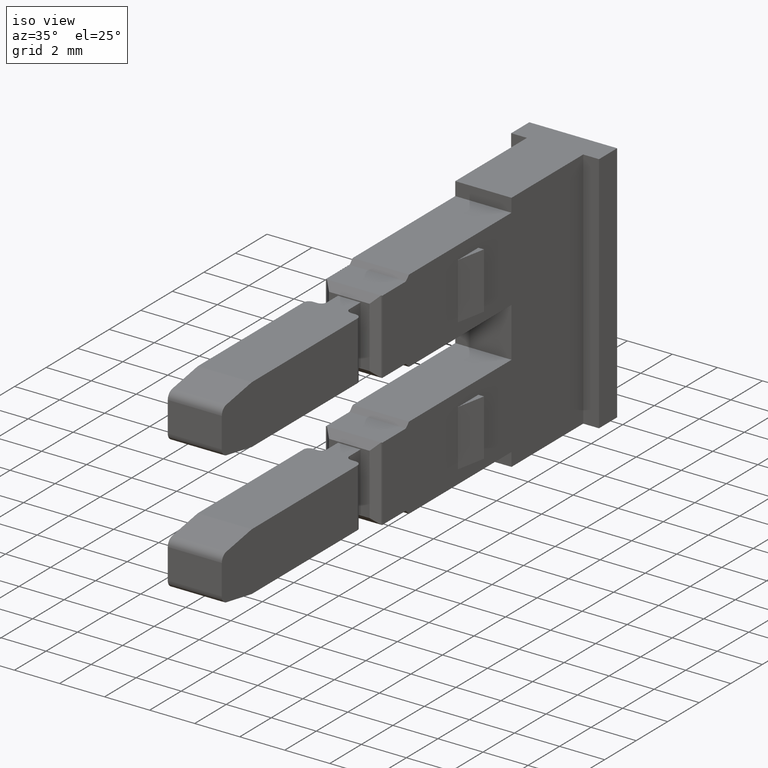
[diagram: clean part render]
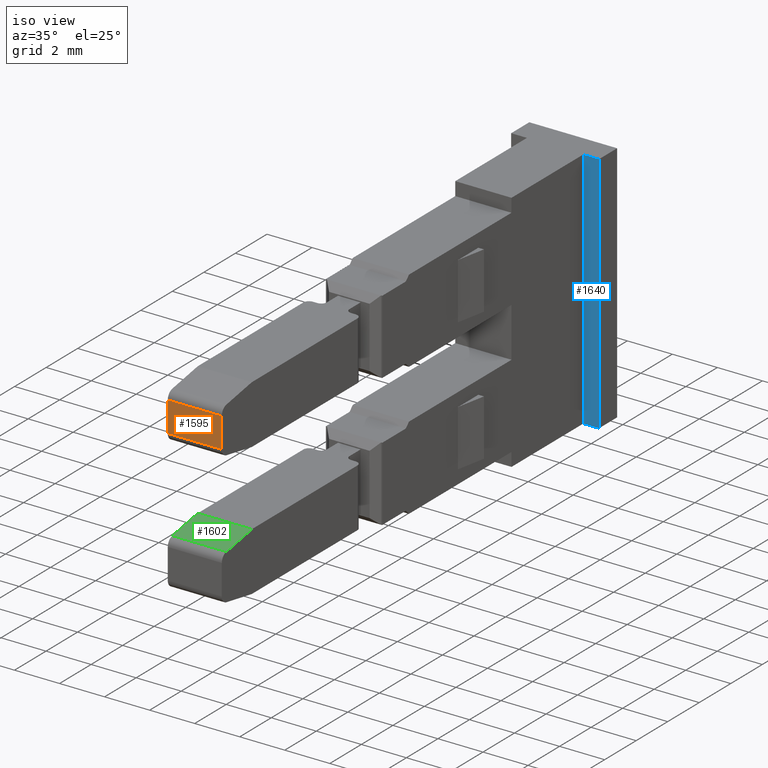
[diagram: same view with three faces highlighted in distinct colors, each labeled with its STEP entity id]
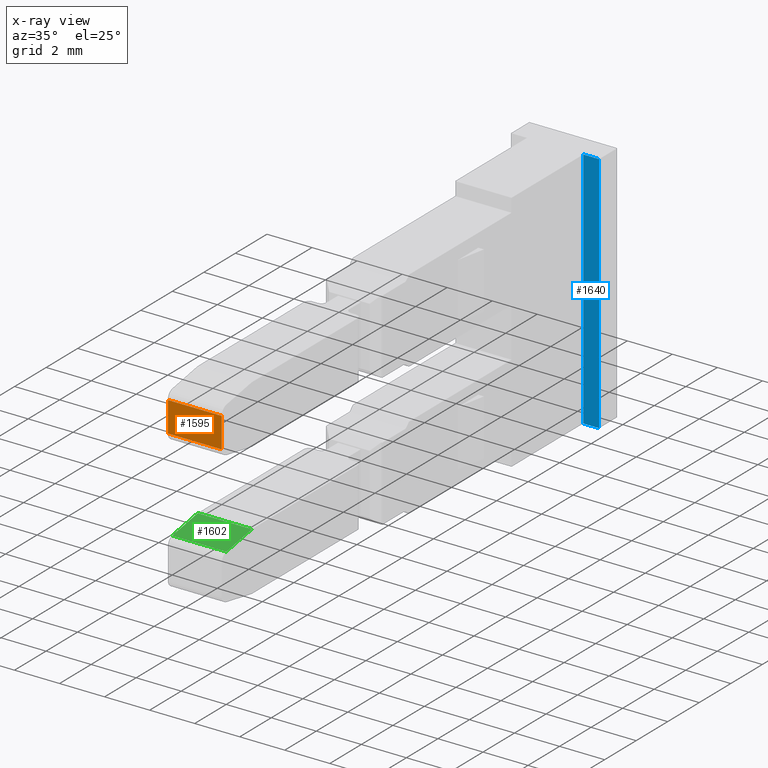
[diagram: x-ray of the same camera — body ghosted, the three highlighted faces saturated]
A machine part, iso view with three faces highlighted in distinct colors.
The next image is the same camera in x-ray (body ghosted, the three faces saturated) — at least one of them is partly hidden behind the body in this view.
Their STEP definitions:

[orange] entity #1595 — the highlighted planar face has unit normal (-0, 1, 0).
#218 = AXIS2_PLACEMENT_3D ( 'NONE', #2261, #2263, #2248 ) ;
#335 = VECTOR ( 'NONE', #2379, 1000.000000000000000 ) ;
#351 = VECTOR ( 'NONE', #2437, 1000.000000000000000 ) ;
#352 = VECTOR ( 'NONE', #2432, 1000.000000000000000 ) ;
#357 = VECTOR ( 'NONE', #2409, 1000.000000000000000 ) ;
#404 = VERTEX_POINT ( 'NONE', #1134 ) ;
#699 = ORIENTED_EDGE ( 'NONE', *, *, #1313, .F. ) ;
#747 = ORIENTED_EDGE ( 'NONE', *, *, #1308, .F. ) ;
#759 = ORIENTED_EDGE ( 'NONE', *, *, #1322, .F. ) ;
#760 = ORIENTED_EDGE ( 'NONE', *, *, #1320, .F. ) ;
#874 = EDGE_LOOP ( 'NONE', ( #759, #747, #760, #699 ) ) ;
#1134 = CARTESIAN_POINT ( 'NONE',  ( 1456.818237421122100, 985.6946795375389500, -80.17192042437014300 ) ) ;
#1263 = VERTEX_POINT ( 'NONE', #2306 ) ;
#1265 = VERTEX_POINT ( 'NONE', #2347 ) ;
#1283 = VERTEX_POINT ( 'NONE', #2351 ) ;
#1308 = EDGE_CURVE ( 'NONE', #1263, #1283, #2394, .T. ) ;
#1313 = EDGE_CURVE ( 'NONE', #1265, #404, #2371, .T. ) ;
#1320 = EDGE_CURVE ( 'NONE', #404, #1263, #2408, .T. ) ;
#1322 = EDGE_CURVE ( 'NONE', #1283, #1265, #2434, .T. ) ;
#1595 = ADVANCED_FACE ( 'NONE', ( #2260 ), #2288, .F. ) ;
#2248 = DIRECTION ( 'NONE',  ( -1.000000000000000000, -5.817690394031371500E-016, 0.0000000000000000000 ) ) ;
#2260 = FACE_OUTER_BOUND ( 'NONE', #874, .T. ) ;
#2261 = CARTESIAN_POINT ( 'NONE',  ( 1447.990005405424200, 985.6946795375389500, -80.17192042437015700 ) ) ;
#2263 = DIRECTION ( 'NONE',  ( -5.817690394031371500E-016, 1.000000000000000000, 0.0000000000000000000 ) ) ;
#2288 = PLANE ( 'NONE',  #218 ) ;
#2306 = CARTESIAN_POINT ( 'NONE',  ( 1456.818237421122100, 985.6946795375389500, -78.82879612739110100 ) ) ;
#2347 = CARTESIAN_POINT ( 'NONE',  ( 1459.217905001598200, 985.6946795375389500, -80.17192042437014300 ) ) ;
#2351 = CARTESIAN_POINT ( 'NONE',  ( 1459.217905001598200, 985.6946795375389500, -78.82879612739110100 ) ) ;
#2371 = LINE ( 'NONE', #2387, #351 ) ;
#2377 = CARTESIAN_POINT ( 'NONE',  ( 1447.990005405424200, 985.6946795375389500, -78.82879612739111500 ) ) ;
#2379 = DIRECTION ( 'NONE',  ( 1.000000000000000000, 5.817690394031370500E-016, 1.715124499442885300E-015 ) ) ;
#2387 = CARTESIAN_POINT ( 'NONE',  ( 1447.990005405424200, 985.6946795375389500, -80.17192042437015700 ) ) ;
#2394 = LINE ( 'NONE', #2377, #335 ) ;
#2408 = LINE ( 'NONE', #2422, #352 ) ;
#2409 = DIRECTION ( 'NONE',  ( -0.0000000000000000000, -0.0000000000000000000, -1.000000000000000000 ) ) ;
#2422 = CARTESIAN_POINT ( 'NONE',  ( 1456.818237421122100, 985.6946795375389500, -80.17192042437015700 ) ) ;
#2432 = DIRECTION ( 'NONE',  ( 0.0000000000000000000, 0.0000000000000000000, 1.000000000000000000 ) ) ;
#2434 = LINE ( 'NONE', #2436, #357 ) ;
#2436 = CARTESIAN_POINT ( 'NONE',  ( 1459.217905001598200, 985.6946795375389500, -80.17192042437015700 ) ) ;
#2437 = DIRECTION ( 'NONE',  ( -1.000000000000000000, -5.817690394031370500E-016, -1.715124499442885300E-015 ) ) ;

[blue] entity #1640 — the highlighted planar face has unit normal (0, 1, -0).
#276 = AXIS2_PLACEMENT_3D ( 'NONE', #2879, #2882, #2871 ) ;
#374 = VECTOR ( 'NONE', #2470, 1000.000000000000000 ) ;
#375 = VECTOR ( 'NONE', #2464, 1000.000000000000000 ) ;
#397 = VECTOR ( 'NONE', #2578, 1000.000000000000000 ) ;
#399 = VECTOR ( 'NONE', #2571, 1000.000000000000000 ) ;
#768 = ORIENTED_EDGE ( 'NONE', *, *, #1340, .F. ) ;
#776 = ORIENTED_EDGE ( 'NONE', *, *, #1362, .F. ) ;
#778 = ORIENTED_EDGE ( 'NONE', *, *, #1330, .F. ) ;
#817 = ORIENTED_EDGE ( 'NONE', *, *, #1360, .T. ) ;
#917 = EDGE_LOOP ( 'NONE', ( #817, #778, #776, #768 ) ) ;
#1255 = VERTEX_POINT ( 'NONE', #2312 ) ;
#1269 = VERTEX_POINT ( 'NONE', #2330 ) ;
#1270 = VERTEX_POINT ( 'NONE', #2356 ) ;
#1284 = VERTEX_POINT ( 'NONE', #2336 ) ;
#1330 = EDGE_CURVE ( 'NONE', #1270, #1269, #2402, .T. ) ;
#1340 = EDGE_CURVE ( 'NONE', #1284, #1255, #2445, .T. ) ;
#1360 = EDGE_CURVE ( 'NONE', #1284, #1269, #2524, .T. ) ;
#1362 = EDGE_CURVE ( 'NONE', #1255, #1270, #2577, .T. ) ;
#1640 = ADVANCED_FACE ( 'NONE', ( #2889 ), #2901, .F. ) ;
#2312 = CARTESIAN_POINT ( 'NONE',  ( 1459.968071211366100, 1008.542679537514300, -77.04999999999270700 ) ) ;
#2330 = CARTESIAN_POINT ( 'NONE',  ( 1459.267071211366600, 1008.542679537515800, -87.84999999998737500 ) ) ;
#2336 = CARTESIAN_POINT ( 'NONE',  ( 1459.267071211366600, 1008.542679537515800, -77.04999999999287800 ) ) ;
#2356 = CARTESIAN_POINT ( 'NONE',  ( 1459.968071211366100, 1008.542679537513700, -87.84999999998736100 ) ) ;
#2402 = LINE ( 'NONE', #2471, #374 ) ;
#2445 = LINE ( 'NONE', #2490, #375 ) ;
#2464 = DIRECTION ( 'NONE',  ( 1.000000000000000000, -1.280238727656624100E-014, -0.0000000000000000000 ) ) ;
#2470 = DIRECTION ( 'NONE',  ( -1.000000000000000000, 1.591874026890570400E-028, 1.715124499443520100E-015 ) ) ;
#2471 = CARTESIAN_POINT ( 'NONE',  ( 1457.871626077922200, 1008.542679537512100, -87.84999999998734700 ) ) ;
#2490 = CARTESIAN_POINT ( 'NONE',  ( 1459.868482057144100, 1008.542679537518100, -77.04999999999283500 ) ) ;
#2524 = LINE ( 'NONE', #2546, #399 ) ;
#2546 = CARTESIAN_POINT ( 'NONE',  ( 1459.267071211366600, 1008.542679537515100, -100.1158559843420100 ) ) ;
#2552 = CARTESIAN_POINT ( 'NONE',  ( 1459.968071211366100, 1008.542679537518100, -100.1158559843420100 ) ) ;
#2571 = DIRECTION ( 'NONE',  ( -8.167936110773030400E-029, 1.045690813403665900E-042, -1.000000000000000000 ) ) ;
#2577 = LINE ( 'NONE', #2552, #397 ) ;
#2578 = DIRECTION ( 'NONE',  ( -6.693669382370647900E-057, -5.228454067018329500E-043, -1.000000000000000000 ) ) ;
#2871 = DIRECTION ( 'NONE',  ( -1.000000000000000000, 1.280238727656624100E-014, 0.0000000000000000000 ) ) ;
#2879 = CARTESIAN_POINT ( 'NONE',  ( 1459.868482057144100, 1008.542679537518100, -100.1158559843420100 ) ) ;
#2882 = DIRECTION ( 'NONE',  ( 1.280238727656624100E-014, 1.000000000000000000, -5.228454067018329500E-043 ) ) ;
#2889 = FACE_OUTER_BOUND ( 'NONE', #917, .T. ) ;
#2901 = PLANE ( 'NONE',  #276 ) ;

[green] entity #1602 — the highlighted planar face has unit normal (0, 0.1736, -0.9848).
#108 = VECTOR ( 'NONE', #1897, 1000.000000000000000 ) ;
#122 = VECTOR ( 'NONE', #1848, 999.9999999999998900 ) ;
#123 = VECTOR ( 'NONE', #1884, 1000.000000000000000 ) ;
#128 = VECTOR ( 'NONE', #1794, 999.9999999999998900 ) ;
#221 = AXIS2_PLACEMENT_3D ( 'NONE', #3051, #3043, #3022 ) ;
#480 = VERTEX_POINT ( 'NONE', #1208 ) ;
#490 = VERTEX_POINT ( 'NONE', #1174 ) ;
#504 = VERTEX_POINT ( 'NONE', #1243 ) ;
#514 = VERTEX_POINT ( 'NONE', #2352 ) ;
#974 = EDGE_LOOP ( 'NONE', ( #1016, #1008, #992, #1054 ) ) ;
#992 = ORIENTED_EDGE ( 'NONE', *, *, #1463, .F. ) ;
#1008 = ORIENTED_EDGE ( 'NONE', *, *, #1484, .F. ) ;
#1016 = ORIENTED_EDGE ( 'NONE', *, *, #1479, .F. ) ;
#1054 = ORIENTED_EDGE ( 'NONE', *, *, #1492, .F. ) ;
#1174 = CARTESIAN_POINT ( 'NONE',  ( 1459.217905001598200, 985.9839026753555800, -84.38411341383684300 ) ) ;
#1208 = CARTESIAN_POINT ( 'NONE',  ( 1456.818237421122100, 985.9839026753555800, -84.38411341383684300 ) ) ;
#1243 = CARTESIAN_POINT ( 'NONE',  ( 1459.217905001598200, 987.5951899123730300, -84.10000000015426700 ) ) ;
#1463 = EDGE_CURVE ( 'NONE', #480, #514, #1767, .T. ) ;
#1479 = EDGE_CURVE ( 'NONE', #504, #490, #1842, .T. ) ;
#1484 = EDGE_CURVE ( 'NONE', #514, #504, #1864, .T. ) ;
#1492 = EDGE_CURVE ( 'NONE', #490, #480, #1858, .T. ) ;
#1602 = ADVANCED_FACE ( 'NONE', ( #3004 ), #3041, .F. ) ;
#1767 = LINE ( 'NONE', #1780, #128 ) ;
#1780 = CARTESIAN_POINT ( 'NONE',  ( 1456.818237421122100, 987.5951899124289600, -84.10000000026970200 ) ) ;
#1794 = DIRECTION ( 'NONE',  ( 0.0000000000000000000, 0.9848077530122177900, 0.1736481776668759300 ) ) ;
#1827 = CARTESIAN_POINT ( 'NONE',  ( 1459.217905001598200, 987.5951899124289600, -84.10000000026970200 ) ) ;
#1842 = LINE ( 'NONE', #1827, #122 ) ;
#1848 = DIRECTION ( 'NONE',  ( -0.0000000000000000000, -0.9848077530122177900, -0.1736481776668759300 ) ) ;
#1858 = LINE ( 'NONE', #1896, #108 ) ;
#1864 = LINE ( 'NONE', #1869, #123 ) ;
#1869 = CARTESIAN_POINT ( 'NONE',  ( 1458.020071211366000, 987.5951899124289600, -84.09999999998783000 ) ) ;
#1884 = DIRECTION ( 'NONE',  ( 1.000000000000000000, 0.0000000000000000000, 1.715124499442840100E-015 ) ) ;
#1896 = CARTESIAN_POINT ( 'NONE',  ( 1447.990005405424200, 985.9839026753555800, -84.38411341383685700 ) ) ;
#1897 = DIRECTION ( 'NONE',  ( -1.000000000000000000, 2.757610805231813000E-016, -1.563918802529759200E-015 ) ) ;
#2352 = CARTESIAN_POINT ( 'NONE',  ( 1456.818237421122100, 987.5951899124344200, -84.10000000014346700 ) ) ;
#3004 = FACE_OUTER_BOUND ( 'NONE', #974, .T. ) ;
#3022 = DIRECTION ( 'NONE',  ( 0.0000000000000000000, 0.9848077530122177900, 0.1736481776668759300 ) ) ;
#3041 = PLANE ( 'NONE',  #221 ) ;
#3043 = DIRECTION ( 'NONE',  ( 1.588044770917189400E-015, 0.1736481776668759300, -0.9848077530122177900 ) ) ;
#3051 = CARTESIAN_POINT ( 'NONE',  ( 1447.990005405424200, 987.5951899124289600, -84.10000000026970200 ) ) ;